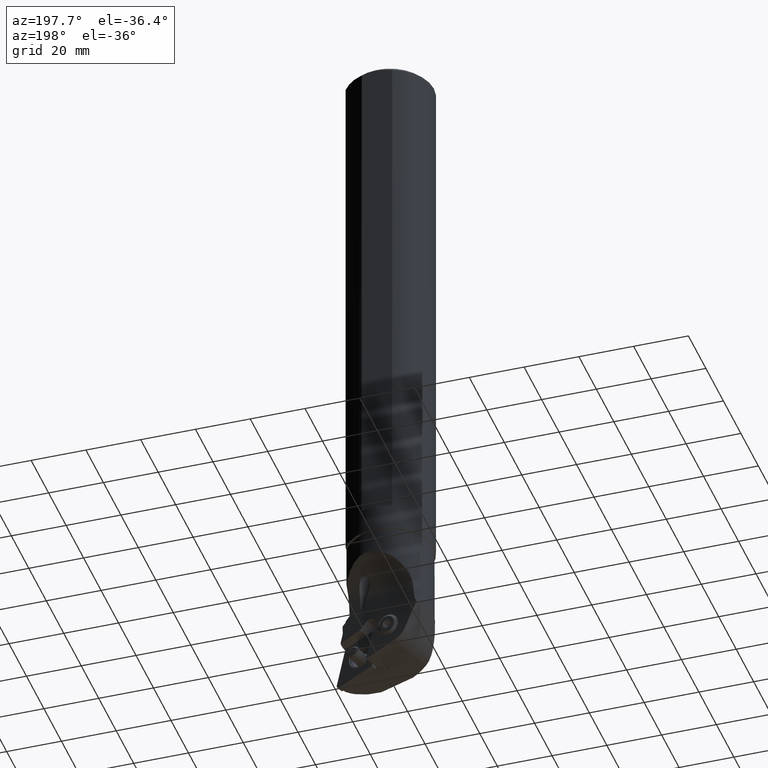
[diagram: clean part render]
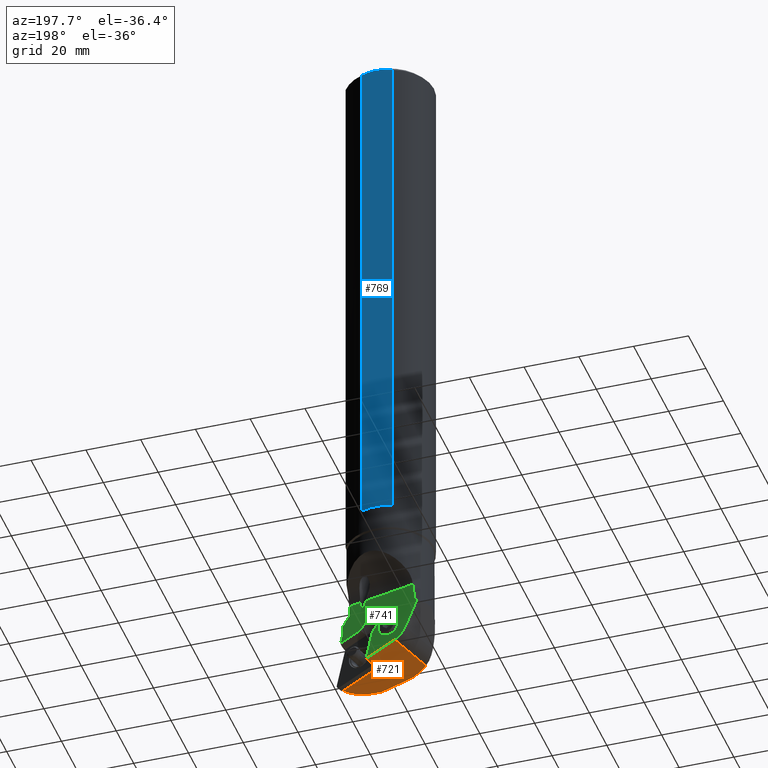
[diagram: same view with three faces highlighted in distinct colors, each labeled with its STEP entity id]
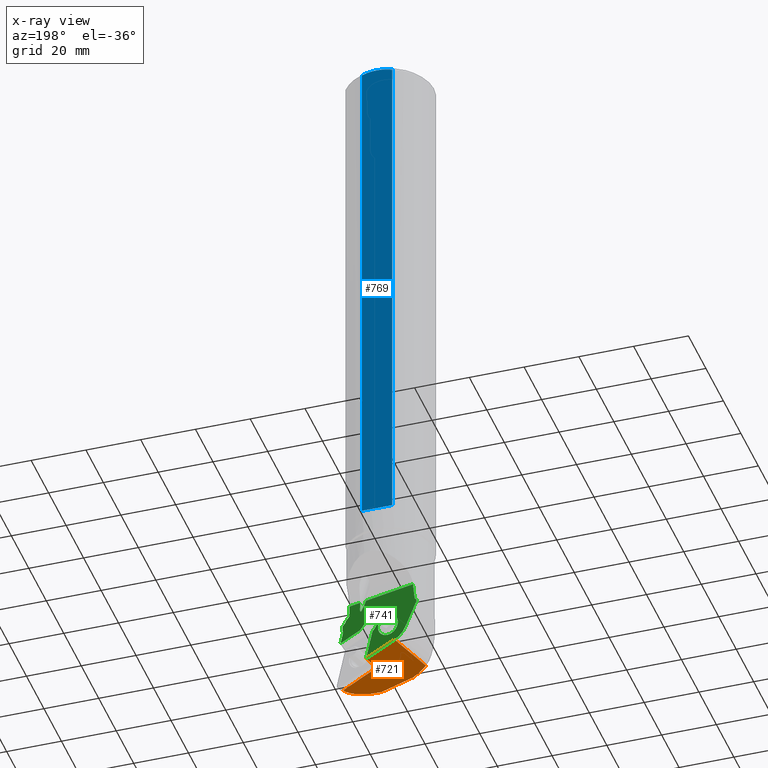
[diagram: x-ray of the same camera — body ghosted, the three highlighted faces saturated]
A machine part, auxiliary view with three faces highlighted in distinct colors.
The next image is the same camera in x-ray (body ghosted, the three faces saturated) — at least one of them is partly hidden behind the body in this view.
Their STEP definitions:

[orange] entity #721 — the highlighted planar face has unit normal (0.3081, 0.0314, 0.9508).
#115=PLANE('',#3859);
#260=LINE('',#5526,#489);
#262=LINE('',#5534,#491);
#263=LINE('',#5536,#492);
#264=LINE('',#5538,#493);
#265=LINE('',#5542,#494);
#489=VECTOR('',#4321,1.);
#491=VECTOR('',#4331,1.);
#492=VECTOR('',#4332,1.);
#493=VECTOR('',#4333,1.);
#494=VECTOR('',#4336,1.);
#721=ADVANCED_FACE('',(#967),#115,.F.);
#967=FACE_OUTER_BOUND('',#1161,.T.);
#1161=EDGE_LOOP('',(#1611,#1612,#1613,#1614,#1615,#1616,#1617,#1618,#1619,
#1620));
#1531=ELLIPSE('',#3855,19.3831025390824,18.43);
#1532=ELLIPSE('',#3857,19.3831025390824,18.43);
#1533=ELLIPSE('',#3858,0.366232376757686,0.3000000001066);
#1611=ORIENTED_EDGE('',*,*,#3011,.T.);
#1612=ORIENTED_EDGE('',*,*,#3044,.F.);
#1613=ORIENTED_EDGE('',*,*,#3042,.F.);
#1614=ORIENTED_EDGE('',*,*,#3045,.F.);
#1615=ORIENTED_EDGE('',*,*,#3046,.T.);
#1616=ORIENTED_EDGE('',*,*,#3047,.T.);
#1617=ORIENTED_EDGE('',*,*,#3048,.F.);
#1618=ORIENTED_EDGE('',*,*,#3049,.T.);
#1619=ORIENTED_EDGE('',*,*,#3050,.T.);
#1620=ORIENTED_EDGE('',*,*,#3051,.T.);
#2657=VERTEX_POINT('',#5366);
#2658=VERTEX_POINT('',#5371);
#2683=VERTEX_POINT('',#5525);
#2684=VERTEX_POINT('',#5527);
#2685=VERTEX_POINT('',#5533);
#2686=VERTEX_POINT('',#5535);
#2687=VERTEX_POINT('',#5537);
#2688=VERTEX_POINT('',#5539);
#2689=VERTEX_POINT('',#5541);
#2690=VERTEX_POINT('',#5543);
#3011=EDGE_CURVE('',#2658,#2657,#3557,.T.);
#3042=EDGE_CURVE('',#2683,#2684,#260,.T.);
#3044=EDGE_CURVE('',#2684,#2657,#1531,.T.);
#3045=EDGE_CURVE('',#2685,#2683,#1532,.T.);
#3046=EDGE_CURVE('',#2685,#2686,#262,.T.);
#3047=EDGE_CURVE('',#2686,#2687,#263,.T.);
#3048=EDGE_CURVE('',#2688,#2687,#264,.T.);
#3049=EDGE_CURVE('',#2688,#2689,#1533,.T.);
#3050=EDGE_CURVE('',#2689,#2690,#265,.T.);
#3051=EDGE_CURVE('',#2690,#2658,#3569,.T.);
#3557=B_SPLINE_CURVE_WITH_KNOTS('',3,(#5367,#5368,#5369,#5370),
 .UNSPECIFIED.,.F.,.F.,(4,4),(0.,1.),.UNSPECIFIED.);
#3569=B_SPLINE_CURVE_WITH_KNOTS('',3,(#5544,#5545,#5546,#5547),
 .UNSPECIFIED.,.F.,.F.,(4,4),(0.,1.),.UNSPECIFIED.);
#3855=AXIS2_PLACEMENT_3D('',#5530,#4325,#4326);
#3857=AXIS2_PLACEMENT_3D('',#5532,#4329,#4330);
#3858=AXIS2_PLACEMENT_3D('',#5540,#4334,#4335);
#3859=AXIS2_PLACEMENT_3D('',#5548,#4337,#4338);
#4321=DIRECTION('',(0.951298148401752,-4.82348270029627E-14,-0.308272335520717));
#4325=DIRECTION('',(0.308120038361805,0.0314296813335205,0.950828174325516));
#4326=DIRECTION('',(-0.945919784336916,-0.0964882308429151,0.309718877223857));
#4329=DIRECTION('',(0.308120038361805,0.0314296813335205,0.950828174325516));
#4330=DIRECTION('',(-0.945919784336916,-0.0964882308429151,0.309718877223857));
#4331=DIRECTION('',(0.223718748934898,0.969032363621791,-0.104528463245999));
#4332=DIRECTION('',(0.924668569491645,-0.244925403716612,-0.291546879949914));
#4333=DIRECTION('',(0.236829771633502,0.965455797789109,-0.108658924085501));
#4334=DIRECTION('',(0.308120038361805,0.0314296813335205,0.950828174325516));
#4335=DIRECTION('',(0.924668569453924,-0.244925403721861,-0.291546880065139));
#4336=DIRECTION('',(0.9246685694554,-0.2449254037205,-0.2915468800616));
#4337=DIRECTION('',(0.308120038361805,0.0314296813335205,0.950828174325516));
#4338=DIRECTION('',(0.924668569454263,-0.244925403720391,-0.291546880065298));
#5366=CARTESIAN_POINT('',(19.17979133715,-8.7010894319,-248.4529329018));
#5367=CARTESIAN_POINT('',(19.190441113176,-8.66848785670058,-248.461623565385));
#5368=CARTESIAN_POINT('',(19.1864847506689,-8.67939650692064,-248.459980902694));
#5369=CARTESIAN_POINT('',(19.1825283881618,-8.6903051571407,-248.458338240003));
#5370=CARTESIAN_POINT('',(19.1785720256548,-8.70121380736076,-248.456695577312));
#5371=CARTESIAN_POINT('',(19.1922468338,-8.668303664773,-248.4560512889));
#5525=CARTESIAN_POINT('',(-2.85056225639169,-17.5000000000015,-241.027213640421));
#5526=CARTESIAN_POINT('',(-2.850562256391,-17.5,-241.0272136404));
#5527=CARTESIAN_POINT('',(8.710562256382,-17.5000000000001,-244.773646723247));
#5530=CARTESIAN_POINT('',(2.93,0.,-243.478893713114));
#5532=CARTESIAN_POINT('',(2.93,0.,-243.478893713114));
#5533=CARTESIAN_POINT('',(-8.46602130358071,-14.4843225056726,-239.30718291611));
#5534=CARTESIAN_POINT('',(-8.466021303684,-14.48432250612,-239.3071829171));
#5535=CARTESIAN_POINT('',(-3.662936103523,6.320125163755,-241.5513359794));
#5536=CARTESIAN_POINT('',(-3.662936102696,6.320125163768,-241.5513359766));
#5537=CARTESIAN_POINT('',(7.743423914559,3.298818476878,-245.147747474));
#5538=CARTESIAN_POINT('',(6.053115507216,-3.591861021165,-244.3722238072));
#5539=CARTESIAN_POINT('',(6.05311550767411,-3.59186102130377,-244.372223807434));
#5540=CARTESIAN_POINT('',(6.39095524447393,-3.68493704684749,-244.47862562183));
#5541=CARTESIAN_POINT('',(6.3238396190625,-3.97564675585112,-244.447267082615));
#5542=CARTESIAN_POINT('',(6.323839618357,-3.975646755668,-244.4472670824));
#5543=CARTESIAN_POINT('',(19.46017975233,-7.455189066291,-248.5891392169));
#5544=CARTESIAN_POINT('',(19.4601797523113,-7.45518906629291,-248.589139216958));
#5545=CARTESIAN_POINT('',(19.3702668725995,-7.8596219964288,-248.546633999767));
#5546=CARTESIAN_POINT('',(19.2803539928877,-8.26405492656469,-248.504128782576));
#5547=CARTESIAN_POINT('',(19.190441113176,-8.66848785670058,-248.461623565385));
#5548=CARTESIAN_POINT('',(6.163066063939,-8.085049859071,-244.2593311455));

[blue] entity #769 — the highlighted planar face has unit normal (0, 1, 0).
#132=PLANE('',#3962);
#319=LINE('',#6083,#548);
#320=LINE('',#6088,#549);
#323=LINE('',#6184,#552);
#548=VECTOR('',#4578,1.);
#549=VECTOR('',#4581,1.);
#552=VECTOR('',#4600,1.);
#769=ADVANCED_FACE('',(#1013),#132,.T.);
#1013=FACE_OUTER_BOUND('',#1211,.T.);
#1211=EDGE_LOOP('',(#1951,#1952,#1953,#1954));
#1951=ORIENTED_EDGE('',*,*,#3214,.T.);
#1952=ORIENTED_EDGE('',*,*,#3201,.F.);
#1953=ORIENTED_EDGE('',*,*,#3215,.T.);
#1954=ORIENTED_EDGE('',*,*,#3199,.F.);
#2788=VERTEX_POINT('',#6084);
#2789=VERTEX_POINT('',#6085);
#2790=VERTEX_POINT('',#6087);
#2791=VERTEX_POINT('',#6089);
#3199=EDGE_CURVE('',#2788,#2789,#319,.T.);
#3201=EDGE_CURVE('',#2790,#2791,#320,.T.);
#3214=EDGE_CURVE('',#2788,#2791,#3620,.T.);
#3215=EDGE_CURVE('',#2790,#2789,#323,.T.);
#3620=B_SPLINE_CURVE_WITH_KNOTS('',3,(#6177,#6178,#6179,#6180,#6181,#6182),
 .UNSPECIFIED.,.F.,.F.,(4,2,4),(0.,0.5,1.),.UNSPECIFIED.);
#3962=AXIS2_PLACEMENT_3D('',#6185,#4601,#4602);
#4578=DIRECTION('',(0.,0.,-1.));
#4581=DIRECTION('',(0.,0.,1.));
#4600=DIRECTION('',(-1.,1.882354329222E-14,0.));
#4601=DIRECTION('',(0.,1.,0.));
#4602=DIRECTION('',(0.,0.,-1.));
#6083=CARTESIAN_POINT('',(-5.56776436283,15.,-1.8));
#6084=CARTESIAN_POINT('',(-5.56776436283001,15.,-1.8));
#6085=CARTESIAN_POINT('',(-5.56776436283,15.,-190.));
#6087=CARTESIAN_POINT('',(5.567764362831,15.,-190.));
#6088=CARTESIAN_POINT('',(5.567764362831,15.,-190.));
#6089=CARTESIAN_POINT('',(5.56776436283051,15.,-1.80000000000017));
#6177=CARTESIAN_POINT('',(-5.56776436283,15.,-1.79999999999999));
#6178=CARTESIAN_POINT('',(-3.76508334585127,15.,-1.17269355475722));
#6179=CARTESIAN_POINT('',(-1.91811670689172,15.,-0.8008745150568));
#6180=CARTESIAN_POINT('',(1.90441452087817,15.,-0.799128614108057));
#6181=CARTESIAN_POINT('',(3.76409884730659,15.,-1.1723509637627));
#6182=CARTESIAN_POINT('',(5.56776436283,15.,-1.79999999999999));
#6184=CARTESIAN_POINT('',(5.567764362831,15.,-190.));
#6185=CARTESIAN_POINT('',(0.,15.,-95.39374339057));

[green] entity #741 — the highlighted planar face has unit normal (0.2237, 0.969, -0.1045).
#83=FACE_BOUND('',#1181,.T.);
#84=FACE_BOUND('',#1182,.T.);
#124=PLANE('',#3904);
#263=LINE('',#5536,#492);
#287=LINE('',#5767,#516);
#291=LINE('',#5777,#520);
#292=LINE('',#5779,#521);
#293=LINE('',#5781,#522);
#294=LINE('',#5784,#523);
#295=LINE('',#5803,#524);
#296=LINE('',#5807,#525);
#297=LINE('',#5809,#526);
#298=LINE('',#5811,#527);
#492=VECTOR('',#4332,1.);
#516=VECTOR('',#4430,1.);
#520=VECTOR('',#4442,1.);
#521=VECTOR('',#4445,1.);
#522=VECTOR('',#4446,1.);
#523=VECTOR('',#4449,1.);
#524=VECTOR('',#4450,1.);
#525=VECTOR('',#4453,1.);
#526=VECTOR('',#4454,1.);
#527=VECTOR('',#4455,1.);
#741=ADVANCED_FACE('',(#83,#84),#124,.T.);
#1181=EDGE_LOOP('',(#1745,#1746,#1747,#1748,#1749,#1750,#1751,#1752,#1753,
#1754,#1755,#1756,#1757,#1758,#1759,#1760,#1761,#1762,#1763,#1764,#1765));
#1182=EDGE_LOOP('',(#1766,#1767));
#1382=CIRCLE('',#3892,2.500000000149);
#1383=CIRCLE('',#3893,2.500000000149);
#1384=CIRCLE('',#3900,8.000000002594);
#1385=CIRCLE('',#3902,3.999999999999);
#1386=CIRCLE('',#3903,3.999999999999);
#1544=ELLIPSE('',#3901,20.0787214252265,2.000000000749);
#1745=ORIENTED_EDGE('',*,*,#3110,.F.);
#1746=ORIENTED_EDGE('',*,*,#3108,.F.);
#1747=ORIENTED_EDGE('',*,*,#3107,.F.);
#1748=ORIENTED_EDGE('',*,*,#3116,.F.);
#1749=ORIENTED_EDGE('',*,*,#3117,.F.);
#1750=ORIENTED_EDGE('',*,*,#3047,.F.);
#1751=ORIENTED_EDGE('',*,*,#3118,.F.);
#1752=ORIENTED_EDGE('',*,*,#3119,.F.);
#1753=ORIENTED_EDGE('',*,*,#3120,.T.);
#1754=ORIENTED_EDGE('',*,*,#3121,.T.);
#1755=ORIENTED_EDGE('',*,*,#3122,.F.);
#1756=ORIENTED_EDGE('',*,*,#3123,.T.);
#1757=ORIENTED_EDGE('',*,*,#3124,.F.);
#1758=ORIENTED_EDGE('',*,*,#3125,.T.);
#1759=ORIENTED_EDGE('',*,*,#3126,.T.);
#1760=ORIENTED_EDGE('',*,*,#3127,.T.);
#1761=ORIENTED_EDGE('',*,*,#3128,.F.);
#1762=ORIENTED_EDGE('',*,*,#3129,.T.);
#1763=ORIENTED_EDGE('',*,*,#3130,.T.);
#1764=ORIENTED_EDGE('',*,*,#3017,.F.);
#1765=ORIENTED_EDGE('',*,*,#3115,.F.);
#1766=ORIENTED_EDGE('',*,*,#3131,.F.);
#1767=ORIENTED_EDGE('',*,*,#3132,.F.);
#2663=VERTEX_POINT('',#5406);
#2664=VERTEX_POINT('',#5411);
#2686=VERTEX_POINT('',#5535);
#2687=VERTEX_POINT('',#5537);
#2730=VERTEX_POINT('',#5760);
#2731=VERTEX_POINT('',#5762);
#2732=VERTEX_POINT('',#5764);
#2733=VERTEX_POINT('',#5768);
#2735=VERTEX_POINT('',#5780);
#2736=VERTEX_POINT('',#5783);
#2737=VERTEX_POINT('',#5785);
#2738=VERTEX_POINT('',#5790);
#2739=VERTEX_POINT('',#5797);
#2740=VERTEX_POINT('',#5802);
#2741=VERTEX_POINT('',#5804);
#2742=VERTEX_POINT('',#5806);
#2743=VERTEX_POINT('',#5808);
#2744=VERTEX_POINT('',#5810);
#2745=VERTEX_POINT('',#5812);
#2746=VERTEX_POINT('',#5817);
#2747=VERTEX_POINT('',#5824);
#2748=VERTEX_POINT('',#5830);
#2749=VERTEX_POINT('',#5831);
#3017=EDGE_CURVE('',#2663,#2664,#3561,.T.);
#3047=EDGE_CURVE('',#2686,#2687,#263,.T.);
#3107=EDGE_CURVE('',#2730,#2731,#1382,.T.);
#3108=EDGE_CURVE('',#2731,#2732,#1383,.T.);
#3110=EDGE_CURVE('',#2732,#2733,#287,.T.);
#3115=EDGE_CURVE('',#2733,#2663,#291,.T.);
#3116=EDGE_CURVE('',#2735,#2730,#292,.T.);
#3117=EDGE_CURVE('',#2687,#2735,#293,.T.);
#3118=EDGE_CURVE('',#2736,#2686,#1384,.T.);
#3119=EDGE_CURVE('',#2737,#2736,#294,.T.);
#3120=EDGE_CURVE('',#2737,#2738,#3587,.T.);
#3121=EDGE_CURVE('',#2738,#2739,#3588,.T.);
#3122=EDGE_CURVE('',#2740,#2739,#3589,.T.);
#3123=EDGE_CURVE('',#2740,#2741,#295,.T.);
#3124=EDGE_CURVE('',#2742,#2741,#1544,.T.);
#3125=EDGE_CURVE('',#2742,#2743,#296,.T.);
#3126=EDGE_CURVE('',#2743,#2744,#297,.T.);
#3127=EDGE_CURVE('',#2744,#2745,#298,.T.);
#3128=EDGE_CURVE('',#2746,#2745,#3590,.T.);
#3129=EDGE_CURVE('',#2746,#2747,#3591,.T.);
#3130=EDGE_CURVE('',#2747,#2664,#3592,.T.);
#3131=EDGE_CURVE('',#2748,#2749,#1385,.T.);
#3132=EDGE_CURVE('',#2749,#2748,#1386,.T.);
#3561=B_SPLINE_CURVE_WITH_KNOTS('',3,(#5407,#5408,#5409,#5410),
 .UNSPECIFIED.,.F.,.F.,(4,4),(0.,1.),.UNSPECIFIED.);
#3587=B_SPLINE_CURVE_WITH_KNOTS('',3,(#5786,#5787,#5788,#5789),
 .UNSPECIFIED.,.F.,.F.,(4,4),(0.,1.),.UNSPECIFIED.);
#3588=B_SPLINE_CURVE_WITH_KNOTS('',3,(#5791,#5792,#5793,#5794,#5795,#5796),
 .UNSPECIFIED.,.F.,.F.,(4,1,1,4),(0.,0.3333333333333,0.6666666666667,1.),
 .UNSPECIFIED.);
#3589=B_SPLINE_CURVE_WITH_KNOTS('',3,(#5798,#5799,#5800,#5801),
 .UNSPECIFIED.,.F.,.F.,(4,4),(0.,1.),.UNSPECIFIED.);
#3590=B_SPLINE_CURVE_WITH_KNOTS('',3,(#5813,#5814,#5815,#5816),
 .UNSPECIFIED.,.F.,.F.,(4,4),(0.,1.),.UNSPECIFIED.);
#3591=B_SPLINE_CURVE_WITH_KNOTS('',3,(#5818,#5819,#5820,#5821,#5822,#5823),
 .UNSPECIFIED.,.F.,.F.,(4,1,1,4),(0.,0.3333333333333,0.6666666666667,1.),
 .UNSPECIFIED.);
#3592=B_SPLINE_CURVE_WITH_KNOTS('',3,(#5825,#5826,#5827,#5828),
 .UNSPECIFIED.,.F.,.F.,(4,4),(0.,1.),.UNSPECIFIED.);
#3892=AXIS2_PLACEMENT_3D('',#5761,#4423,#4424);
#3893=AXIS2_PLACEMENT_3D('',#5763,#4425,#4426);
#3900=AXIS2_PLACEMENT_3D('',#5782,#4447,#4448);
#3901=AXIS2_PLACEMENT_3D('',#5805,#4451,#4452);
#3902=AXIS2_PLACEMENT_3D('',#5829,#4456,#4457);
#3903=AXIS2_PLACEMENT_3D('',#5832,#4458,#4459);
#3904=AXIS2_PLACEMENT_3D('',#5833,#4460,#4461);
#4332=DIRECTION('',(0.924668569491645,-0.244925403716612,-0.291546879949914));
#4423=DIRECTION('',(0.223718748931306,0.969032363616827,-0.104528463299703));
#4424=DIRECTION('',(-0.700270241644679,0.0852154976814808,-0.708773523505081));
#4425=DIRECTION('',(0.223718748931306,0.969032363616827,-0.104528463299703));
#4426=DIRECTION('',(0.0235137880253296,0.101849405557898,0.99452189536491));
#4430=DIRECTION('',(0.677917037781203,-0.231764098190601,-0.697648831917503));
#4442=DIRECTION('',(0.924668569454571,-0.244925403720192,-0.291546880064491));
#4445=DIRECTION('',(-0.677917037827197,0.231764098177699,0.697648831877096));
#4446=DIRECTION('',(-0.2779709435647,0.1662291279547,0.9460972632627));
#4447=DIRECTION('',(-0.223718748933593,-0.969032363626968,0.104528463200797));
#4448=DIRECTION('',(-0.855586122888899,0.143888624981024,-0.497260947512483));
#4449=DIRECTION('',(0.466821494523984,-0.200679699705193,-0.86128122606767));
#4450=DIRECTION('',(0.974370064781646,-0.224951054359411,-2.64091585570013E-12));
#4451=DIRECTION('',(0.223718748931198,0.969032363620293,-0.104528463267799));
#4452=DIRECTION('',(0.274511602573704,-0.165552161538656,-0.947225349039127));
#4453=DIRECTION('',(0.974370064789869,-0.224951054323793,2.34845100045193E-12));
#4454=DIRECTION('',(3.74655318388607E-12,-0.107246767232302,-0.994232433044819));
#4455=DIRECTION('',(0.687655973849697,-0.232934590053699,-0.687655973859997));
#4456=DIRECTION('',(0.223718748930291,0.969032363617062,-0.104528463299696));
#4457=DIRECTION('',(-0.974370064785259,0.22495105434376,-1.38777878078179E-14));
#4458=DIRECTION('',(0.223718748930291,0.969032363617062,-0.104528463299696));
#4459=DIRECTION('',(0.974370064785259,-0.224951054343763,-1.38777878078179E-14));
#4460=DIRECTION('',(0.223718748931198,0.969032363620293,-0.104528463267799));
#4461=DIRECTION('',(-0.0235137880209806,-0.101849405526159,-0.994521895368258));
#5406=CARTESIAN_POINT('',(17.4283309347566,2.10132416057822,-235.520852531994));
#5407=CARTESIAN_POINT('',(17.4283309347566,2.10132416057822,-235.520852531994));
#5408=CARTESIAN_POINT('',(17.1006119338133,2.2970018807254,-234.40822583555));
#5409=CARTESIAN_POINT('',(16.7685108540478,2.49353735275771,-233.297026155691));
#5410=CARTESIAN_POINT('',(16.4310815847769,2.691107198662,-232.187641045096));
#5411=CARTESIAN_POINT('',(16.431081584772,2.6911071986655,-232.187641045098));
#5535=CARTESIAN_POINT('',(-3.662936103523,6.320125163755,-241.5513359794));
#5536=CARTESIAN_POINT('',(-3.662936102696,6.320125163768,-241.5513359766));
#5537=CARTESIAN_POINT('',(7.743423914559,3.298818476878,-245.147747474));
#5760=CARTESIAN_POINT('',(3.768895383784,5.400918297846,-234.1667555822));
#5761=CARTESIAN_POINT('',(5.519570987845,5.187879553592,-232.3948217734));
#5762=CARTESIAN_POINT('',(5.578355457912,5.442503067502,-229.9085170349));
#5763=CARTESIAN_POINT('',(5.519570987835,5.187879553548,-232.3948217734));
#5764=CARTESIAN_POINT('',(7.270246591811,4.974840809414,-230.6228879643));
#5767=CARTESIAN_POINT('',(7.270246591837,4.974840809423,-230.6228879643));
#5768=CARTESIAN_POINT('',(9.64502182052637,4.16296028627669,-233.066784594796));
#5777=CARTESIAN_POINT('',(9.64502182054,4.162960286274,-233.0667845948));
#5779=CARTESIAN_POINT('',(4.841404099445,5.034252465003,-235.2704812756));
#5780=CARTESIAN_POINT('',(4.841404099445,5.034252465003,-235.2704812756));
#5781=CARTESIAN_POINT('',(7.743423914559,3.298818476878,-245.147747474));
#5782=CARTESIAN_POINT('',(-1.197975795458,6.57156261388,-233.9447105825));
#5783=CARTESIAN_POINT('',(-8.042664778736,7.722671613855,-237.9227981627));
#5784=CARTESIAN_POINT('',(-12.72008906431,9.733427570968,-229.2929947565));
#5785=CARTESIAN_POINT('',(-12.72008906431,9.73342757096802,-229.2929947565));
#5786=CARTESIAN_POINT('',(-12.72008906431,9.733427570968,-229.2929947565));
#5787=CARTESIAN_POINT('',(-12.70462118219,9.758297919149,-229.0293285104));
#5788=CARTESIAN_POINT('',(-12.68908156266,9.783151420661,-228.7656649044));
#5789=CARTESIAN_POINT('',(-12.67346985529,9.807987993213,-228.5020039514));
#5790=CARTESIAN_POINT('',(-12.67346985529,9.807987993213,-228.5020039514));
#5791=CARTESIAN_POINT('',(-12.67346943706,9.807987783062,-228.502003492));
#5792=CARTESIAN_POINT('',(-12.60575837437,9.798742048688,-228.442796476));
#5793=CARTESIAN_POINT('',(-12.47073336238,9.780283011365,-228.3249339347));
#5794=CARTESIAN_POINT('',(-12.26937823008,9.752688178348,-228.1497976483));
#5795=CARTESIAN_POINT('',(-12.13592954092,9.734354012466,-228.0341492188));
#5796=CARTESIAN_POINT('',(-12.06940112216,9.725202134272,-227.9766032809));
#5797=CARTESIAN_POINT('',(-12.06940112216,9.725202134272,-227.9766032809));
#5798=CARTESIAN_POINT('',(-11.62759483732,10.24934331063,-222.1719631539));
#5799=CARTESIAN_POINT('',(-11.78043619625,10.07594904114,-224.1065380063));
#5800=CARTESIAN_POINT('',(-11.92758177279,9.901206148454,-226.041424795));
#5801=CARTESIAN_POINT('',(-12.06940112216,9.725202134273,-227.9766032809));
#5802=CARTESIAN_POINT('',(-11.6275948373314,10.2493433106165,-222.1719631539));
#5803=CARTESIAN_POINT('',(-11.62759483733,10.2493433106,-222.1719631539));
#5804=CARTESIAN_POINT('',(6.87012275409083,5.97880871000631,-222.171963155455));
#5805=CARTESIAN_POINT('',(3.61802358356089,8.40145041008599,-206.673192732567));
#5806=CARTESIAN_POINT('',(9.24303747931309,5.43097817995732,-222.171963154564));
#5807=CARTESIAN_POINT('',(9.243037478636,5.430978180034,-222.1719631539));
#5808=CARTESIAN_POINT('',(13.4999999999949,4.44818094305567,-222.171963153968));
#5809=CARTESIAN_POINT('',(13.49999999999,4.448180943133,-222.1719631539));
#5810=CARTESIAN_POINT('',(13.5,4.037778565837,-225.9766032809));
#5811=CARTESIAN_POINT('',(13.5,4.037778565837,-225.9766032809));
#5812=CARTESIAN_POINT('',(15.1006965932951,3.49556324460221,-227.577299874207));
#5813=CARTESIAN_POINT('',(15.11115876584,3.450076043283,-227.9765976803));
#5814=CARTESIAN_POINT('',(15.10769847048,3.465231954975,-227.8435005741));
#5815=CARTESIAN_POINT('',(15.10420758144,3.480395913092,-227.710394352));
#5816=CARTESIAN_POINT('',(15.1006965933,3.4955632446,-227.5772998742));
#5817=CARTESIAN_POINT('',(15.11115876584,3.450076043283,-227.9765976803));
#5818=CARTESIAN_POINT('',(15.11115876584,3.450076043283,-227.9765976803));
#5819=CARTESIAN_POINT('',(15.24861097189,3.404970819145,-228.1005618713));
#5820=CARTESIAN_POINT('',(15.52517931204,3.314098875575,-228.3510609765));
#5821=CARTESIAN_POINT('',(15.94512192056,3.175795643321,-228.7344156431));
#5822=CARTESIAN_POINT('',(16.22848062618,3.082263510612,-228.9950385967));
#5823=CARTESIAN_POINT('',(16.37101939043,3.035164114519,-229.1266031933));
#5824=CARTESIAN_POINT('',(16.3710194183,3.035164444588,-229.1266032809));
#5825=CARTESIAN_POINT('',(16.3710194183,3.035164444588,-229.1266032809));
#5826=CARTESIAN_POINT('',(16.39233631031,2.920185747589,-230.1468908349));
#5827=CARTESIAN_POINT('',(16.41234574236,2.805502550635,-231.1672372647));
#5828=CARTESIAN_POINT('',(16.43108158477,2.691107198669,-232.1876410451));
#5829=CARTESIAN_POINT('',(-1.280711440622,6.505706842339,-234.7323036145));
#5830=CARTESIAN_POINT('',(-5.178191699724,7.40551105988,-234.7323036145));
#5831=CARTESIAN_POINT('',(2.616768818556,5.60590262513,-234.7323036145));
#5832=CARTESIAN_POINT('',(-1.280711440584,6.505706842505,-234.7323036145));
#5833=CARTESIAN_POINT('',(2.324497485175,5.789062606592,-233.6598553139));